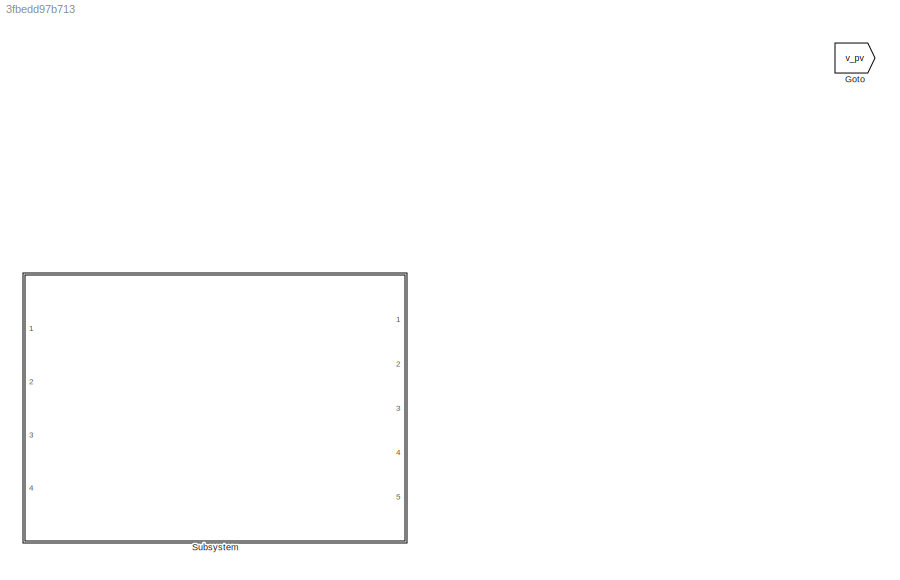
MODEL slx_3fbedd97b713
KIND library
CONFIG AbsTol = auto
CONFIG EnableMultiTasking = off
CONFIG FixedStep = auto
CONFIG MaxStep = auto
CONFIG MinStep = auto
CONFIG RelTol = 1e-3
CONFIG SampleTimeConstraint = Unconstrained
CONFIG Solver = VariableStepAuto
CONFIG SolverName = VariableStepAuto
CONFIG StartTime = 0.0
CONFIG StopTime = 10.0
BLOCK [Goto] Goto
  GotoTag = v_pv
  TagVisibility = global
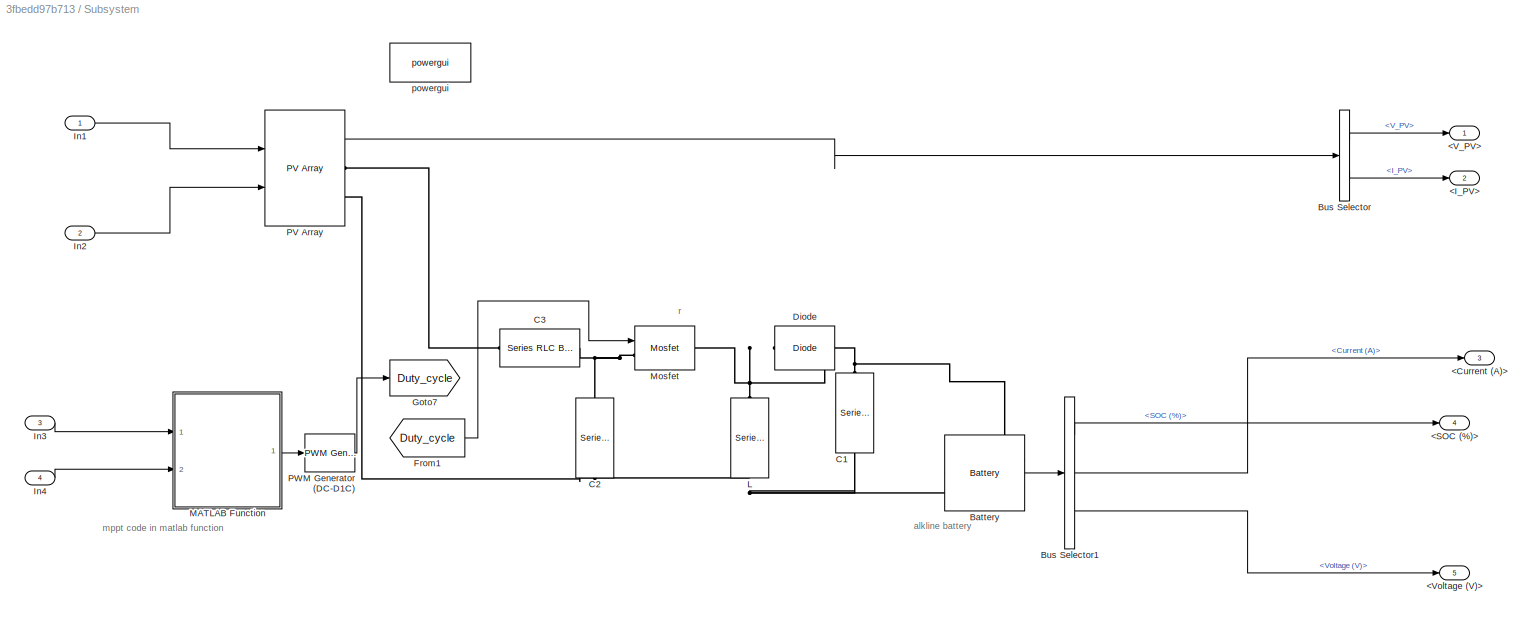
BLOCK [SubSystem] Subsystem
  Ports = [4, 5]
  RequestExecContextInheritance = off
BLOCK [Outport] Subsystem/<Current (A)>
  IconDisplay = Port number
  Port = 3
BLOCK [Outport] Subsystem/<I_PV>
  IconDisplay = Port number
  Port = 2
BLOCK [Outport] Subsystem/<SOC (%)>
  IconDisplay = Port number
  Port = 4
BLOCK [Outport] Subsystem/<V_PV>
  IconDisplay = Port number
BLOCK [Outport] Subsystem/<Voltage (V)>
  IconDisplay = Port number
  Port = 5
BLOCK [Reference] Subsystem/Battery  REF=electricdrivelib/Extra Sources/Battery
  Ports = [0, 1, 0, 0, 0, 2]
  SourceBlock = electricdrivelib/Extra Sources/Battery
  SourceProductBaseCode = PS
  SourceProductName = Simscape Electrical
  SourceType = Battery
BLOCK [BusSelector] Subsystem/Bus Selector
  OutputAsBus = off
  OutputSignals = V_PV,I_PV
  Ports = [1, 2]
BLOCK [BusSelector] Subsystem/Bus Selector1
  OutputAsBus = off
  OutputSignals = SOC (%),Current (A),Voltage (V)
  Ports = [1, 3]
BLOCK [Reference] Subsystem/C1  REF=powerlib/Elements/Series RLC Branch
  Ports = [0, 0, 0, 0, 0, 1, 1]
  SourceBlock = powerlib/Elements/Series RLC Branch
  SourceProductBaseCode = PS
  SourceProductName = Simscape Electrical
  SourceType = Series RLC Branch
BLOCK [Reference] Subsystem/C2  REF=powerlib/Elements/Series RLC Branch
  Ports = [0, 0, 0, 0, 0, 1, 1]
  SourceBlock = powerlib/Elements/Series RLC Branch
  SourceProductBaseCode = PS
  SourceProductName = Simscape Electrical
  SourceType = Series RLC Branch
BLOCK [Reference] Subsystem/C3  REF=powerlib/Elements/Series RLC Branch
  Ports = [0, 0, 0, 0, 0, 1, 1]
  SourceBlock = powerlib/Elements/Series RLC Branch
  SourceProductBaseCode = PS
  SourceProductName = Simscape Electrical
  SourceType = Series RLC Branch
BLOCK [Reference] Subsystem/Diode  REF=powerlib/Power
Electronics/Diode
  Ports = [0, 0, 0, 0, 0, 1, 1]
  SourceBlock = powerlib/Power\nElectronics/Diode
  SourceProductBaseCode = PS
  SourceProductName = Simscape Electrical
  SourceType = Diode
BLOCK [From] Subsystem/From1
  GotoTag = Duty_cycle
  TagVisibility = global
BLOCK [Goto] Subsystem/Goto7
  GotoTag = Duty_cycle
  TagVisibility = global
BLOCK [Inport] Subsystem/In1
  IconDisplay = Port number
BLOCK [Inport] Subsystem/In2
  IconDisplay = Port number
  Port = 2
BLOCK [Inport] Subsystem/In3
  IconDisplay = Port number
  Port = 3
BLOCK [Inport] Subsystem/In4
  IconDisplay = Port number
  Port = 4
BLOCK [Reference] Subsystem/L  REF=powerlib/Elements/Series RLC Branch
  Ports = [0, 0, 0, 0, 0, 1, 1]
  SourceBlock = powerlib/Elements/Series RLC Branch
  SourceProductBaseCode = PS
  SourceProductName = Simscape Electrical
  SourceType = Series RLC Branch
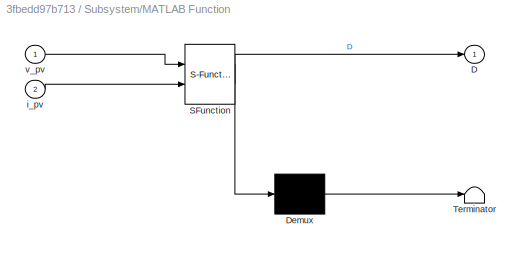
BLOCK [SubSystem] Subsystem/MATLAB Function
  ErrorFcn = Stateflow.Translate.translate
  PermitHierarchicalResolution = ExplicitOnly
  Ports = [2, 1]
  RequestExecContextInheritance = off
  SFBlockType = MATLAB Function
  TreatAsAtomicUnit = on
BLOCK [Demux] Subsystem/MATLAB Function/ Demux 
  Outputs = 1
  Ports = [1, 1]
BLOCK [S-Function] Subsystem/MATLAB Function/ SFunction 
  EnableBusSupport = off
  FunctionName = sf_sfun
  PortCounts = [2 2]
  Ports = [2, 2]
  SFcnIsStateOwnerBlock = off
  SFunctionDeploymentMode = off
  Tag = Stateflow S-Function solarpvmodel 2
BLOCK [Terminator] Subsystem/MATLAB Function/ Terminator 
BLOCK [Outport] Subsystem/MATLAB Function/D
  IconDisplay = Port number
  VectorParamsAs1DForOutWhenUnconnected = on
BLOCK [Inport] Subsystem/MATLAB Function/i_pv
  IconDisplay = Port number
  Port = 2
BLOCK [Inport] Subsystem/MATLAB Function/v_pv
  IconDisplay = Port number
BLOCK [Reference] Subsystem/Mosfet  REF=powerlib/Power
Electronics/Mosfet
  Ports = [1, 0, 0, 0, 0, 1, 1]
  SourceBlock = powerlib/Power\nElectronics/Mosfet
  SourceProductBaseCode = PS
  SourceProductName = Simscape Electrical
  SourceType = Mosfet
BLOCK [Reference] Subsystem/PV Array  REF=re_lib/Solar/PV Array
  Ports = [2, 1, 0, 0, 0, 0, 2]
  SourceBlock = re_lib/Solar/PV Array
  SourceProductBaseCode = PS
  SourceProductName = Simscape Electrical
  SourceType = PV array
BLOCK [Reference] Subsystem/PWM Generator (DC-D1C)  REF=powerlib_meascontrol/Pulse & Signal
Generators/PWM Generator
(DC-DC)
  Ports = [1, 1]
  SourceBlock = powerlib_meascontrol/Pulse & Signal\nGenerators/PWM Generator\n(DC-DC)
  SourceProductBaseCode = PS
  SourceProductName = Simscape Electrical
  SourceType = PWM Generator (DC-DC)
BLOCK [Reference] Subsystem/powergui  REF=powerlib/powergui
  Ports = []
  Priority = 1
  SourceBlock = powerlib/powergui
  SourceProductBaseCode = PS
  SourceProductName = Simscape Electrical
  SourceType = PSB option menu block
ANNOTATION Subsystem: alkline battery
ANNOTATION Subsystem: mppt code in matlab function
ANNOTATION Subsystem: r
LINE Subsystem/Battery:1 -> Subsystem/Bus Selector1:1
LINE Subsystem/Bus Selector1:1 -> Subsystem/<SOC (%)>:1
LINE Subsystem/Bus Selector1:2 -> Subsystem/<Current (A)>:1
LINE Subsystem/Bus Selector1:3 -> Subsystem/<Voltage (V)>:1
LINE Subsystem/Bus Selector:1 -> Subsystem/<V_PV>:1
LINE Subsystem/Bus Selector:2 -> Subsystem/<I_PV>:1
LINE Subsystem/From1:1 -> Subsystem/Mosfet:1
LINE Subsystem/In1:1 -> Subsystem/PV Array:1
LINE Subsystem/In2:1 -> Subsystem/PV Array:2
LINE Subsystem/In3:1 -> Subsystem/MATLAB Function:1
LINE Subsystem/In4:1 -> Subsystem/MATLAB Function:2
LINE Subsystem/MATLAB Function:1 -> Subsystem/PWM Generator (DC-D1C):1
LINE Subsystem/PV Array:1 -> Subsystem/Bus Selector:1
LINE Subsystem/PWM Generator (DC-D1C):1 -> Subsystem/Goto7:1
PNET net1: Subsystem/Battery:LConn1 -- Subsystem/C1:RConn1 -- Subsystem/C2:RConn1 -- Subsystem/L:RConn1 -- Subsystem/PV Array:RConn2
PNET net2: Subsystem/Battery:LConn2 -- Subsystem/C1:LConn1 -- Subsystem/Diode:LConn1
PNET net3: Subsystem/C2:LConn1 -- Subsystem/C3:LConn1 -- Subsystem/Mosfet:LConn1
PLINE Subsystem/C3:RConn1 -- Subsystem/PV Array:RConn1
PNET net4: Subsystem/Diode:RConn1 -- Subsystem/L:LConn1 -- Subsystem/Mosfet:RConn1
note: PNET lines group multi-terminal physical nets as a canonical sorted terminal list (undirected conserving connections); 2-terminal nets keep the pairwise PLINE form
CHART Subsystem/MATLAB Function states=1 transitions=1
  STATE_LABEL 'eML_blk_kernel()'
  STATE_LABEL 'SCRIPT:\nfunction D = pando(v_pv,i_pv)\npersistent Dprev Pprev Vprev \nif isempty(Dprev)\n    Dprev =0.6;\n    Vprev = 35;\n    Pprev =213;\nend\n\ndeltaD=0.00004;\nPpv=v_pv*i_pv;\n\nif (Ppv - Pprev )~=0\n    if(Ppv - Pprev) > 0\n        if (v_pv - Vprev) > 0\n            D = Dprev - deltaD;\n        else\n            D = Dprev + deltaD;\n        end\n    else \n        if (v_pv - Vprev) > 0\n            D = Dprev + d...<+172ch>'
